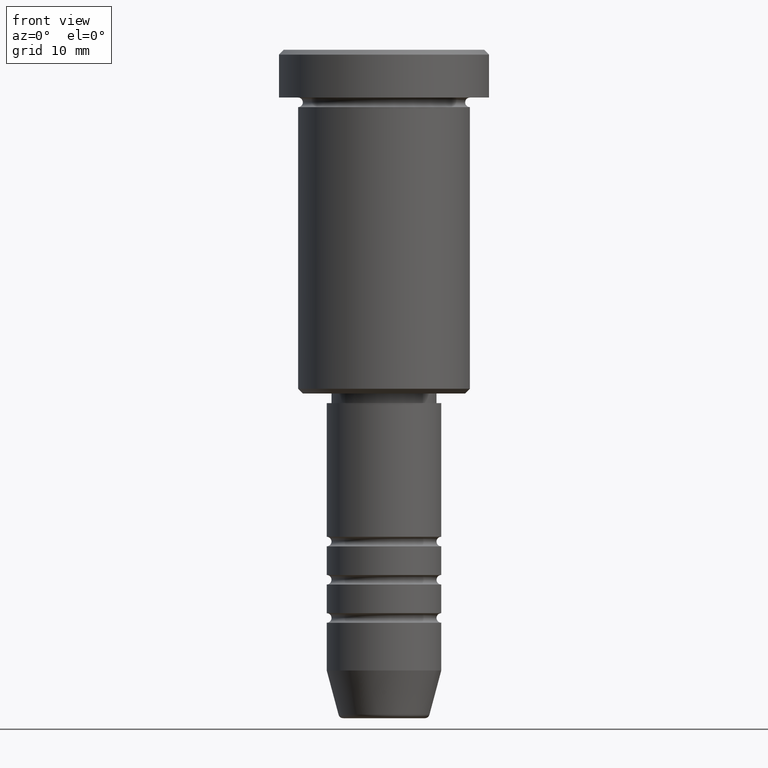
[diagram: clean part render]
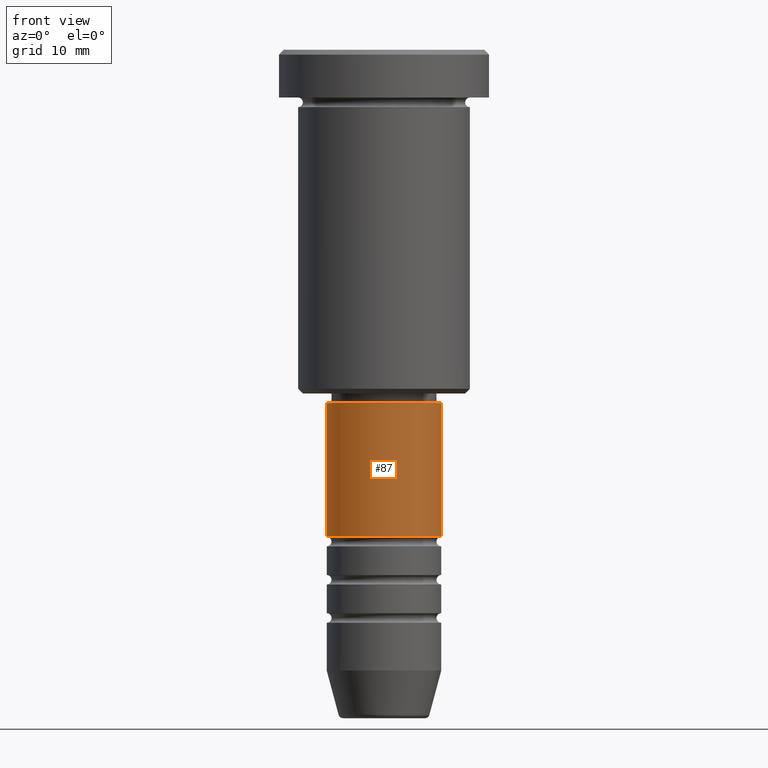
[diagram: same view with one face highlighted and labeled with its STEP entity id]
A machine part, front view. The second image highlights one B-rep face of the part: STEP entity #87.
In plain terms, the highlighted cylindrical surface (partial cylindrical patch) has radius 6 mm, axis along (-0, -0, 1).
Its self-contained STEP definition (entity closure, byte-faithful):
#8 = LINE ( 'NONE', #769, #1004 ) ;
#84 = DIRECTION ( 'NONE',  ( -0.000000000000000000, -0.000000000000000000, 1.000000000000000000 ) ) ;
#87 = ADVANCED_FACE ( 'NONE', ( #1087 ), #754, .T. ) ;
#138 = DIRECTION ( 'NONE',  ( 1.000000000000000000, 0.000000000000000000, 0.000000000000000000 ) ) ;
#253 = AXIS2_PLACEMENT_3D ( 'NONE', #1100, #930, #295 ) ;
#267 = DIRECTION ( 'NONE',  ( 1.000000000000000000, 0.000000000000000000, 0.000000000000000000 ) ) ;
#295 = DIRECTION ( 'NONE',  ( 1.000000000000000000, 0.000000000000000000, 0.000000000000000000 ) ) ;
#310 = VECTOR ( 'NONE', #1085, 1000.000000000000000 ) ;
#314 = VERTEX_POINT ( 'NONE', #789 ) ;
#322 = VERTEX_POINT ( 'NONE', #460 ) ;
#366 = ORIENTED_EDGE ( 'NONE', *, *, #396, .F. ) ;
#373 = CARTESIAN_POINT ( 'NONE',  ( 0.000000000000000000, 0.000000000000000000, -37.00000000000000711 ) ) ;
#394 = CARTESIAN_POINT ( 'NONE',  ( -6.000000000000000000, 7.347880794884119736E-16, -51.00000000000000000 ) ) ;
#396 = EDGE_CURVE ( 'NONE', #547, #314, #819, .T. ) ;
#401 = EDGE_CURVE ( 'NONE', #314, #322, #743, .T. ) ;
#443 = ORIENTED_EDGE ( 'NONE', *, *, #853, .T. ) ;
#460 = CARTESIAN_POINT ( 'NONE',  ( 6.000000000000000000, 0.000000000000000000, -37.00000000000000711 ) ) ;
#473 = AXIS2_PLACEMENT_3D ( 'NONE', #373, #84, #138 ) ;
#483 = ORIENTED_EDGE ( 'NONE', *, *, #1063, .T. ) ;
#505 = CARTESIAN_POINT ( 'NONE',  ( 6.000000000000000000, 0.000000000000000000, -51.00000000000000000 ) ) ;
#547 = VERTEX_POINT ( 'NONE', #394 ) ;
#565 = CARTESIAN_POINT ( 'NONE',  ( -6.000000000000000000, 7.347880794884119736E-16, 0.000000000000000000 ) ) ;
#583 = DIRECTION ( 'NONE',  ( -0.000000000000000000, -0.000000000000000000, 1.000000000000000000 ) ) ;
#640 = DIRECTION ( 'NONE',  ( -0.000000000000000000, -0.000000000000000000, 1.000000000000000000 ) ) ;
#694 = VERTEX_POINT ( 'NONE', #505 ) ;
#726 = CIRCLE ( 'NONE', #889, 6.000000000000000000 ) ;
#743 = CIRCLE ( 'NONE', #473, 6.000000000000000000 ) ;
#754 = CYLINDRICAL_SURFACE ( 'NONE', #253, 6.000000000000000000 ) ;
#769 = CARTESIAN_POINT ( 'NONE',  ( 6.000000000000000000, 0.000000000000000000, 0.000000000000000000 ) ) ;
#789 = CARTESIAN_POINT ( 'NONE',  ( -6.000000000000000000, 7.347880794884119736E-16, -37.00000000000000711 ) ) ;
#819 = LINE ( 'NONE', #565, #310 ) ;
#853 = EDGE_CURVE ( 'NONE', #547, #694, #726, .T. ) ;
#889 = AXIS2_PLACEMENT_3D ( 'NONE', #1077, #640, #267 ) ;
#900 = EDGE_LOOP ( 'NONE', ( #366, #443, #483, #1072 ) ) ;
#930 = DIRECTION ( 'NONE',  ( -0.000000000000000000, -0.000000000000000000, 1.000000000000000000 ) ) ;
#1004 = VECTOR ( 'NONE', #583, 1000.000000000000000 ) ;
#1063 = EDGE_CURVE ( 'NONE', #694, #322, #8, .T. ) ;
#1072 = ORIENTED_EDGE ( 'NONE', *, *, #401, .F. ) ;
#1077 = CARTESIAN_POINT ( 'NONE',  ( 0.000000000000000000, 0.000000000000000000, -51.00000000000000000 ) ) ;
#1085 = DIRECTION ( 'NONE',  ( -0.000000000000000000, -0.000000000000000000, 1.000000000000000000 ) ) ;
#1087 = FACE_OUTER_BOUND ( 'NONE', #900, .T. ) ;
#1100 = CARTESIAN_POINT ( 'NONE',  ( 0.000000000000000000, 0.000000000000000000, 0.000000000000000000 ) ) ;